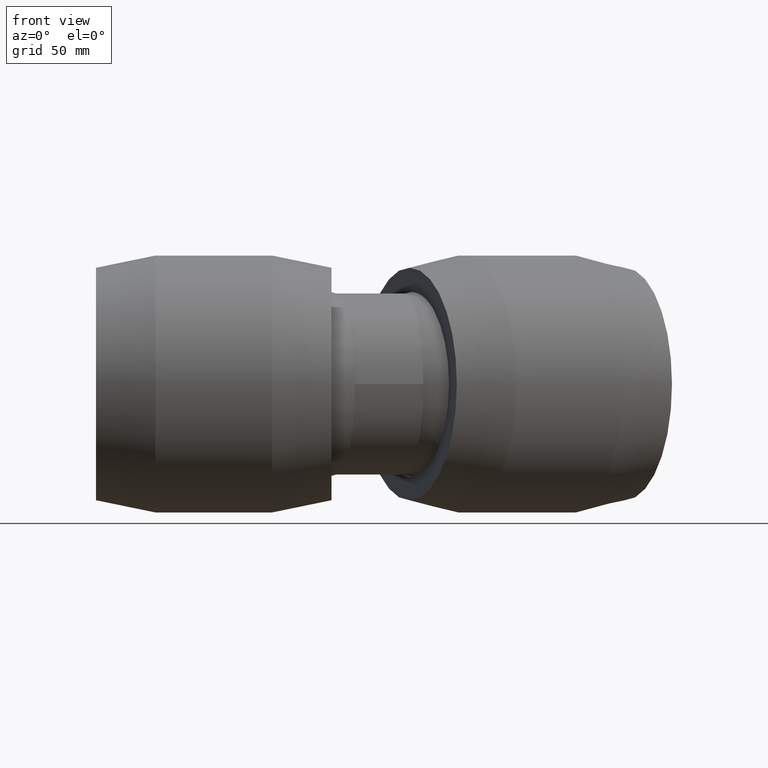
[diagram: clean part render]
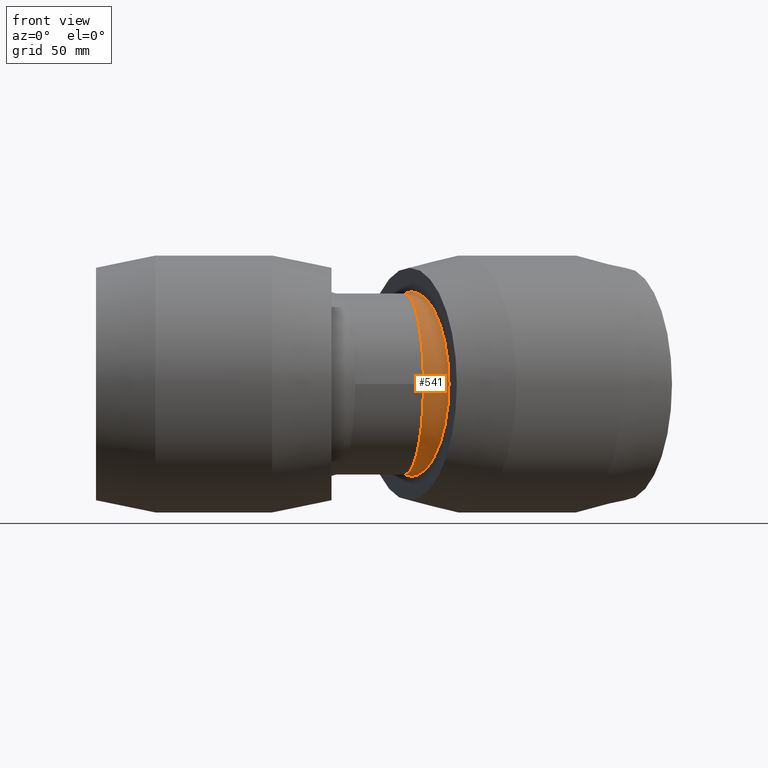
[diagram: same view with one face highlighted and labeled with its STEP entity id]
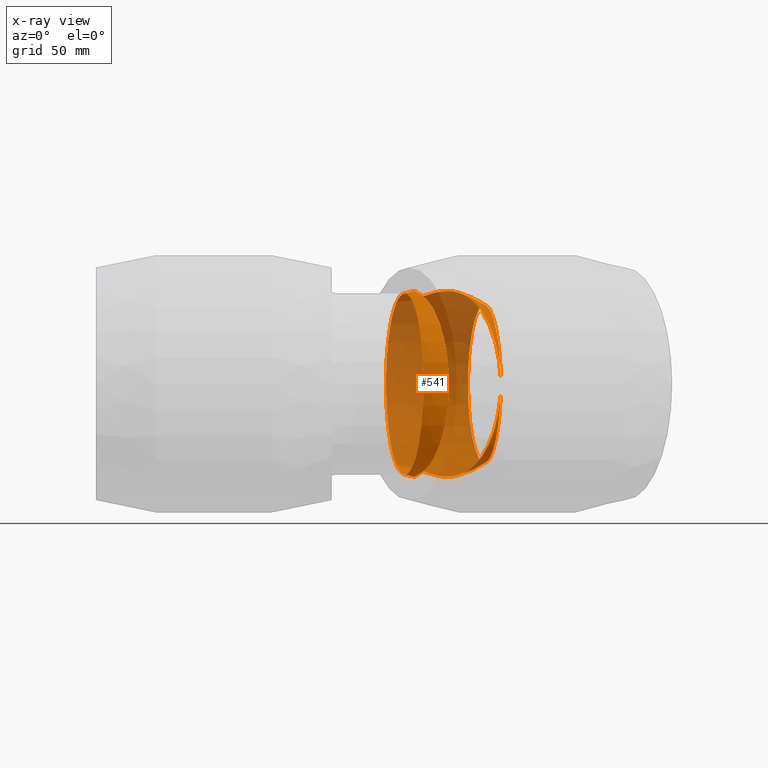
[diagram: x-ray of the same camera — body ghosted, the highlighted face saturated]
A machine part, front view. The second image highlights one B-rep face of the part: STEP entity #541.
The next image is the same camera in x-ray: the body ghosted, the highlighted face saturated — about 69% of this face is hidden behind the body in this view.
In plain terms, the highlighted spherical surface has radius 73.4775 mm.
Its self-contained STEP definition (entity closure, byte-faithful):
#63=FACE_BOUND('',#164,.T.);
#113=FACE_OUTER_BOUND('',#163,.T.);
#163=EDGE_LOOP('',(#427,#428,#429,#430));
#164=EDGE_LOOP('',(#431));
#263=B_SPLINE_CURVE_WITH_KNOTS('',3,(#894,#895,#896,#897,#898,#899,#900,
#901,#902,#903,#904,#905,#906,#907,#908,#909,#910,#911,#912,#913,#914,#915,
#916,#917,#918,#919,#920,#921,#922,#923,#924,#925,#926,#927,#928,#929,#930,
#931,#932,#933,#934,#935,#936,#937,#938,#939,#940,#941,#942,#943),
 .UNSPECIFIED.,.F.,.F.,(4,2,2,2,2,2,2,2,2,2,2,2,2,2,2,2,2,2,2,2,2,2,2,2,
4),(-32.580588079538,-32.0307413992492,-30.9738518500796,-30.1304203855777,
-29.2869889210758,-28.9788346863368,-28.6706804515977,-28.3461047719893,
-28.1838169321852,-28.021529092381,-27.8592412525768,-27.6969534127726,
-27.3723777331642,-27.0642234984251,-26.7560692636861,-25.9126377991842,
-25.0692063346823,-24.0123167855127,-22.9554272363431,-21.8985376871735,
-20.8416481380039,-19.1339272400506,-17.4262063420972,-15.7184854441438,
-14.0107645461905),.UNSPECIFIED.);
#264=B_SPLINE_CURVE_WITH_KNOTS('',3,(#946,#947,#948,#949,#950,#951,#952,
#953,#954,#955,#956,#957,#958,#959,#960,#961,#962,#963,#964,#965,#966,#967,
#968,#969,#970,#971,#972,#973,#974,#975,#976,#977,#978,#979,#980,#981,#982,
#983,#984,#985,#986,#987,#988,#989,#990,#991,#992,#993,#994,#995,#996),
 .UNSPECIFIED.,.F.,.F.,(4,2,2,2,2,2,2,2,2,2,2,2,2,2,2,3,2,2,2,2,2,2,2,2,
4),(-14.0107645461905,-12.3030436482371,-10.5953227502837,-8.88760185233038,
-7.17988095437702,-6.12299140520743,-5.06610185603784,-4.00921230686825,
-2.95232275769866,-2.10889129319676,-1.26545982869487,-0.957305593955802,
-0.649151359216745,-0.324575679608373,-0.162287839804186,0.,0.162287839804188,
0.324575679608376,0.649151359216752,0.957305593955812,1.26545982869487,
2.10889129319677,2.95232275769867,4.00921230686826,4.55905898715704),
 .UNSPECIFIED.);
#271=CIRCLE('',#594,61.0290188278713);
#272=CIRCLE('',#595,71.2730112238207);
#273=CIRCLE('',#596,70.0690188278712);
#319=VERTEX_POINT('',#891);
#320=VERTEX_POINT('',#893);
#321=VERTEX_POINT('',#944);
#322=VERTEX_POINT('',#997);
#371=EDGE_CURVE('',#319,#319,#271,.T.);
#372=EDGE_CURVE('',#320,#319,#263,.T.);
#373=EDGE_CURVE('',#321,#320,#272,.T.);
#374=EDGE_CURVE('',#319,#321,#264,.T.);
#375=EDGE_CURVE('',#322,#322,#273,.T.);
#427=ORIENTED_EDGE('',*,*,#371,.T.);
#428=ORIENTED_EDGE('',*,*,#372,.F.);
#429=ORIENTED_EDGE('',*,*,#373,.F.);
#430=ORIENTED_EDGE('',*,*,#374,.F.);
#431=ORIENTED_EDGE('',*,*,#375,.F.);
#539=SPHERICAL_SURFACE('',#593,73.4774972792035);
#541=ADVANCED_FACE('',(#113,#63),#539,.T.);
#593=AXIS2_PLACEMENT_3D('',#890,#693,#694);
#594=AXIS2_PLACEMENT_3D('',#892,#695,#696);
#595=AXIS2_PLACEMENT_3D('',#945,#697,#698);
#596=AXIS2_PLACEMENT_3D('',#998,#699,#700);
#693=DIRECTION('center_axis',(0.,0.,1.));
#694=DIRECTION('ref_axis',(1.,0.,0.));
#695=DIRECTION('center_axis',(-0.978147600733806,-0.20791169081776,0.));
#696=DIRECTION('ref_axis',(0.20791169081776,-0.978147600733806,0.));
#697=DIRECTION('center_axis',(0.913545457642601,0.4067366430758,1.19788532833232E-16));
#698=DIRECTION('ref_axis',(1.31124873788268E-16,0.,-1.));
#699=DIRECTION('center_axis',(-0.978147600733806,-0.20791169081776,0.));
#700=DIRECTION('ref_axis',(0.20791169081776,-0.978147600733806,0.));
#890=CARTESIAN_POINT('Origin',(169.46170029193,16.6350379245024,0.));
#891=CARTESIAN_POINT('',(222.175609570687,-34.5527181795345,0.));
#892=CARTESIAN_POINT('Origin',(209.486963077235,25.142670162086,0.));
#893=CARTESIAN_POINT('',(157.949255200902,-1.42638317915205,-70.2864943083513));
#894=CARTESIAN_POINT('Ctrl Pts',(157.949255200902,-1.42638317915205,-70.2864943083514));
#895=CARTESIAN_POINT('Ctrl Pts',(157.549601400998,0.453840121244196,-70.7041920845663));
#896=CARTESIAN_POINT('Ctrl Pts',(157.16097457784,2.34526785864583,-71.0436821938359));
#897=CARTESIAN_POINT('Ctrl Pts',(156.075930653871,7.85948040333424,-71.8099801601386));
#898=CARTESIAN_POINT('Ctrl Pts',(155.426090055454,11.4710843371596,-72.0256143229539));
#899=CARTESIAN_POINT('Ctrl Pts',(154.454192724907,17.7302803647184,-71.9751481545891));
#900=CARTESIAN_POINT('Ctrl Pts',(154.036501737632,20.7848006626241,-71.7862437670943));
#901=CARTESIAN_POINT('Ctrl Pts',(153.435728583845,26.867741709207,-71.0414110183423));
#902=CARTESIAN_POINT('Ctrl Pts',(153.253459316797,29.8963079918086,-70.4860158609221));
#903=CARTESIAN_POINT('Ctrl Pts',(153.296854201585,33.6399586410791,-69.6385534676994));
#904=CARTESIAN_POINT('Ctrl Pts',(153.338910653314,34.7370091219942,-69.3728107249405));
#905=CARTESIAN_POINT('Ctrl Pts',(153.531064513671,36.9118566234696,-68.8133565668321));
#906=CARTESIAN_POINT('Ctrl Pts',(153.682655058957,37.9896321412855,-68.5200754826463));
#907=CARTESIAN_POINT('Ctrl Pts',(154.12174325749,39.9778127533663,-67.9699473036529));
#908=CARTESIAN_POINT('Ctrl Pts',(154.454785890433,41.0728412975114,-67.6591717123989));
#909=CARTESIAN_POINT('Ctrl Pts',(155.230985810312,42.5003935047839,-67.2883452646126));
#910=CARTESIAN_POINT('Ctrl Pts',(155.53585610558,42.9402427212193,-67.1813148429146));
#911=CARTESIAN_POINT('Ctrl Pts',(156.261878115493,43.6933350637254,-67.0286151591876));
#912=CARTESIAN_POINT('Ctrl Pts',(156.682878806235,44.006741570572,-66.9830337063627));
#913=CARTESIAN_POINT('Ctrl Pts',(157.671260932127,44.4467976450652,-66.9830337063627));
#914=CARTESIAN_POINT('Ctrl Pts',(158.185871803435,44.5499522439501,-67.0286151591876));
#915=CARTESIAN_POINT('Ctrl Pts',(159.231332028598,44.5855746080139,-67.1813148429145));
#916=CARTESIAN_POINT('Ctrl Pts',(159.762201743315,44.5178208174839,-67.2883452646127));
#917=CARTESIAN_POINT('Ctrl Pts',(161.342458902293,44.1394308974172,-67.659171712399));
#918=CARTESIAN_POINT('Ctrl Pts',(162.379072717549,43.6542126930276,-67.9699473036529));
#919=CARTESIAN_POINT('Ctrl Pts',(164.150386204061,42.6501663171836,-68.5200754826463));
#920=CARTESIAN_POINT('Ctrl Pts',(165.052763376638,42.0416474607492,-68.8133565668321));
#921=CARTESIAN_POINT('Ctrl Pts',(166.797566072657,40.7291885803687,-69.3728107249405));
#922=CARTESIAN_POINT('Ctrl Pts',(167.640974719883,40.0263725613482,-69.6385534676994));
#923=CARTESIAN_POINT('Ctrl Pts',(170.452086173854,37.5536300164881,-70.4860158609221));
#924=CARTESIAN_POINT('Ctrl Pts',(172.580787590205,35.3916711607627,-71.0414110183424));
#925=CARTESIAN_POINT('Ctrl Pts',(176.699298047979,30.8749276692948,-71.7862437670943));
#926=CARTESIAN_POINT('Ctrl Pts',(178.689759178097,28.5206497543802,-71.9751481545891));
#927=CARTESIAN_POINT('Ctrl Pts',(182.690922067519,23.6101696490495,-72.0256143229539));
#928=CARTESIAN_POINT('Ctrl Pts',(184.940038608959,20.7106092407817,-71.8099801601386));
#929=CARTESIAN_POINT('Ctrl Pts',(189.375917768757,14.7956959536094,-70.8018591041913));
#930=CARTESIAN_POINT('Ctrl Pts',(191.562777088641,11.7804133718275,-70.0093852635789));
#931=CARTESIAN_POINT('Ctrl Pts',(195.772140506906,5.84434797936124,-67.857650609992));
#932=CARTESIAN_POINT('Ctrl Pts',(197.796827515041,2.92062706785529,-66.4973092883075));
#933=CARTESIAN_POINT('Ctrl Pts',(201.597169315599,-2.65211906556155,-63.3101401700319));
#934=CARTESIAN_POINT('Ctrl Pts',(203.372872563785,-5.30108785107583,-61.4832714733689));
#935=CARTESIAN_POINT('Ctrl Pts',(207.602785753169,-11.677092526097,-56.3473772897974));
#936=CARTESIAN_POINT('Ctrl Pts',(210.037471000666,-15.4200876391055,-52.5320707938448));
#937=CARTESIAN_POINT('Ctrl Pts',(214.325596826226,-22.0835089862346,-43.8366013540867));
#938=CARTESIAN_POINT('Ctrl Pts',(216.17974774439,-25.0043354300547,-38.9570954268718));
#939=CARTESIAN_POINT('Ctrl Pts',(219.168452928875,-29.7387583047277,-28.5092690332164));
#940=CARTESIAN_POINT('Ctrl Pts',(220.306631526628,-31.5578410761293,-22.9288824155098));
#941=CARTESIAN_POINT('Ctrl Pts',(221.810428643624,-33.9651770715828,-11.5205533619483));
#942=CARTESIAN_POINT('Ctrl Pts',(222.175609570687,-34.5527181795345,-5.69240299317799));
#943=CARTESIAN_POINT('Ctrl Pts',(222.175609570687,-34.5527181795345,-1.0769163338864E-13));
#944=CARTESIAN_POINT('',(157.949255200902,-1.42638317915226,70.2864943083513));
#945=CARTESIAN_POINT('Origin',(153.142687247226,9.36934520107586,-2.13982852583597E-15));
#946=CARTESIAN_POINT('Ctrl Pts',(222.175609570687,-34.5527181795345,-1.0769163338864E-13));
#947=CARTESIAN_POINT('Ctrl Pts',(222.175609570687,-34.5527181795345,5.69240299317778));
#948=CARTESIAN_POINT('Ctrl Pts',(221.810428643624,-33.9651770715828,11.5205533619481));
#949=CARTESIAN_POINT('Ctrl Pts',(220.306631526628,-31.5578410761293,22.9288824155096));
#950=CARTESIAN_POINT('Ctrl Pts',(219.168452928875,-29.7387583047277,28.5092690332162));
#951=CARTESIAN_POINT('Ctrl Pts',(216.17974774439,-25.0043354300548,38.9570954268716));
#952=CARTESIAN_POINT('Ctrl Pts',(214.325596826226,-22.0835089862347,43.8366013540865));
#953=CARTESIAN_POINT('Ctrl Pts',(210.037471000666,-15.4200876391057,52.5320707938447));
#954=CARTESIAN_POINT('Ctrl Pts',(207.602785753169,-11.6770925260972,56.3473772897973));
#955=CARTESIAN_POINT('Ctrl Pts',(203.372872563785,-5.30108785107602,61.4832714733687));
#956=CARTESIAN_POINT('Ctrl Pts',(201.597169315599,-2.6521190655618,63.3101401700318));
#957=CARTESIAN_POINT('Ctrl Pts',(197.796827515041,2.92062706785502,66.4973092883074));
#958=CARTESIAN_POINT('Ctrl Pts',(195.772140506906,5.84434797936101,67.857650609992));
#959=CARTESIAN_POINT('Ctrl Pts',(191.562777088641,11.7804133718272,70.0093852635789));
#960=CARTESIAN_POINT('Ctrl Pts',(189.375917768757,14.7956959536092,70.8018591041913));
#961=CARTESIAN_POINT('Ctrl Pts',(184.940038608959,20.7106092407815,71.8099801601386));
#962=CARTESIAN_POINT('Ctrl Pts',(182.690922067519,23.6101696490493,72.0256143229539));
#963=CARTESIAN_POINT('Ctrl Pts',(178.689759178098,28.52064975438,71.9751481545891));
#964=CARTESIAN_POINT('Ctrl Pts',(176.699298047979,30.8749276692946,71.7862437670943));
#965=CARTESIAN_POINT('Ctrl Pts',(172.580787590205,35.3916711607626,71.0414110183424));
#966=CARTESIAN_POINT('Ctrl Pts',(170.452086173854,37.5536300164879,70.4860158609222));
#967=CARTESIAN_POINT('Ctrl Pts',(167.640974719883,40.026372561348,69.6385534676994));
#968=CARTESIAN_POINT('Ctrl Pts',(166.797566072656,40.7291885803684,69.3728107249406));
#969=CARTESIAN_POINT('Ctrl Pts',(165.052763376638,42.0416474607489,68.8133565668322));
#970=CARTESIAN_POINT('Ctrl Pts',(164.150386204061,42.6501663171834,68.5200754826464));
#971=CARTESIAN_POINT('Ctrl Pts',(162.379072717549,43.6542126930274,67.969947303653));
#972=CARTESIAN_POINT('Ctrl Pts',(161.342458902294,44.1394308974172,67.659171712399));
#973=CARTESIAN_POINT('Ctrl Pts',(159.762201743316,44.5178208174838,67.2883452646127));
#974=CARTESIAN_POINT('Ctrl Pts',(159.231332028598,44.5855746080134,67.1813148429147));
#975=CARTESIAN_POINT('Ctrl Pts',(158.185871803435,44.5499522439496,67.0286151591878));
#976=CARTESIAN_POINT('Ctrl Pts',(157.671260932127,44.446797645065,66.9830337063628));
#977=CARTESIAN_POINT('Ctrl Pts',(157.177069869181,44.2267696078185,66.9830337063628));
#978=CARTESIAN_POINT('Ctrl Pts',(156.682878806235,44.0067415705719,66.9830337063628));
#979=CARTESIAN_POINT('Ctrl Pts',(156.261878115493,43.6933350637252,67.0286151591877));
#980=CARTESIAN_POINT('Ctrl Pts',(155.53585610558,42.9402427212192,67.1813148429146));
#981=CARTESIAN_POINT('Ctrl Pts',(155.230985810312,42.5003935047837,67.2883452646127));
#982=CARTESIAN_POINT('Ctrl Pts',(154.454785890433,41.0728412975113,67.659171712399));
#983=CARTESIAN_POINT('Ctrl Pts',(154.121743257491,39.9778127533661,67.969947303653));
#984=CARTESIAN_POINT('Ctrl Pts',(153.682655058957,37.9896321412854,68.5200754826464));
#985=CARTESIAN_POINT('Ctrl Pts',(153.531064513671,36.9118566234695,68.8133565668322));
#986=CARTESIAN_POINT('Ctrl Pts',(153.338910653314,34.7370091219941,69.3728107249406));
#987=CARTESIAN_POINT('Ctrl Pts',(153.296854201585,33.639958641079,69.6385534676994));
#988=CARTESIAN_POINT('Ctrl Pts',(153.253459316797,29.8963079918084,70.4860158609222));
#989=CARTESIAN_POINT('Ctrl Pts',(153.435728583845,26.8677417092068,71.0414110183424));
#990=CARTESIAN_POINT('Ctrl Pts',(154.036501737632,20.7848006626238,71.7862437670943));
#991=CARTESIAN_POINT('Ctrl Pts',(154.454192724907,17.7302803647182,71.9751481545891));
#992=CARTESIAN_POINT('Ctrl Pts',(155.426090055454,11.4710843371594,72.0256143229539));
#993=CARTESIAN_POINT('Ctrl Pts',(156.075930653871,7.85948040333403,71.8099801601386));
#994=CARTESIAN_POINT('Ctrl Pts',(157.16097457784,2.34526785864563,71.0436821938359));
#995=CARTESIAN_POINT('Ctrl Pts',(157.549601400998,0.453840121243975,70.7041920845663));
#996=CARTESIAN_POINT('Ctrl Pts',(157.949255200902,-1.42638317915226,70.2864943083513));
#997=CARTESIAN_POINT('',(162.393667905939,-56.501721127331,0.));
#998=CARTESIAN_POINT('Origin',(147.825499727495,12.0361215249231,0.));